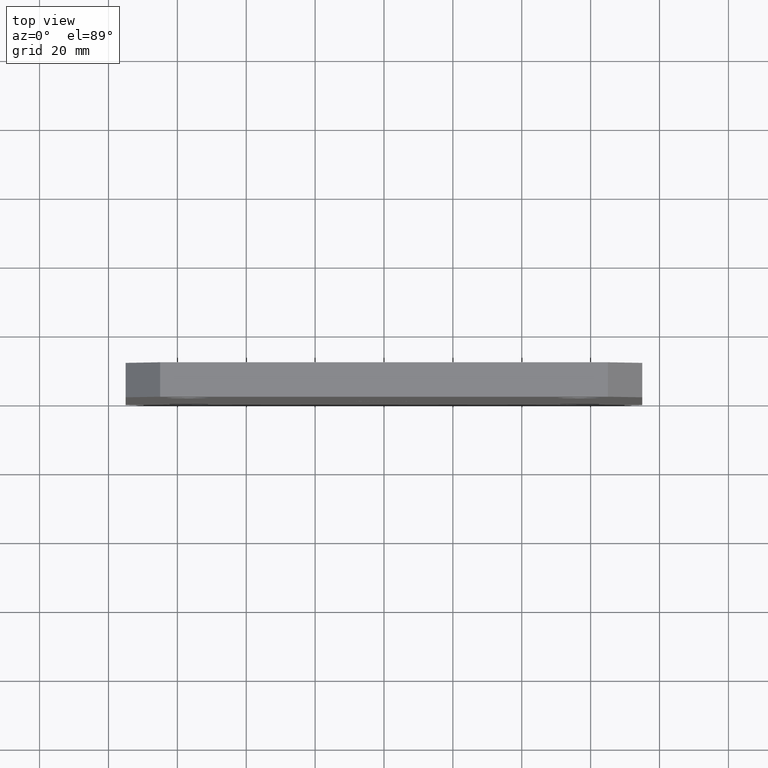
[diagram: clean part render]
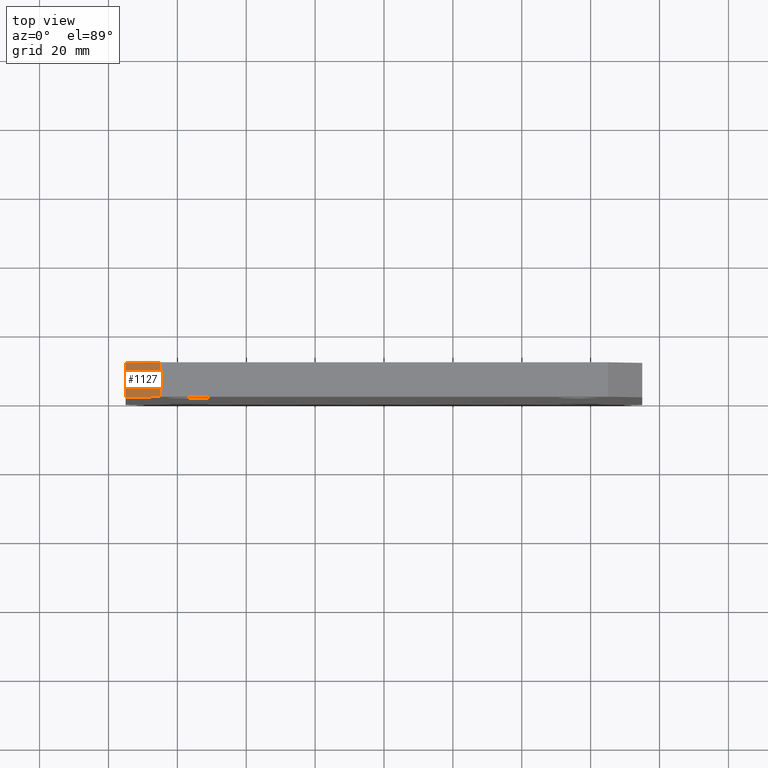
[diagram: same view with one face highlighted and labeled with its STEP entity id]
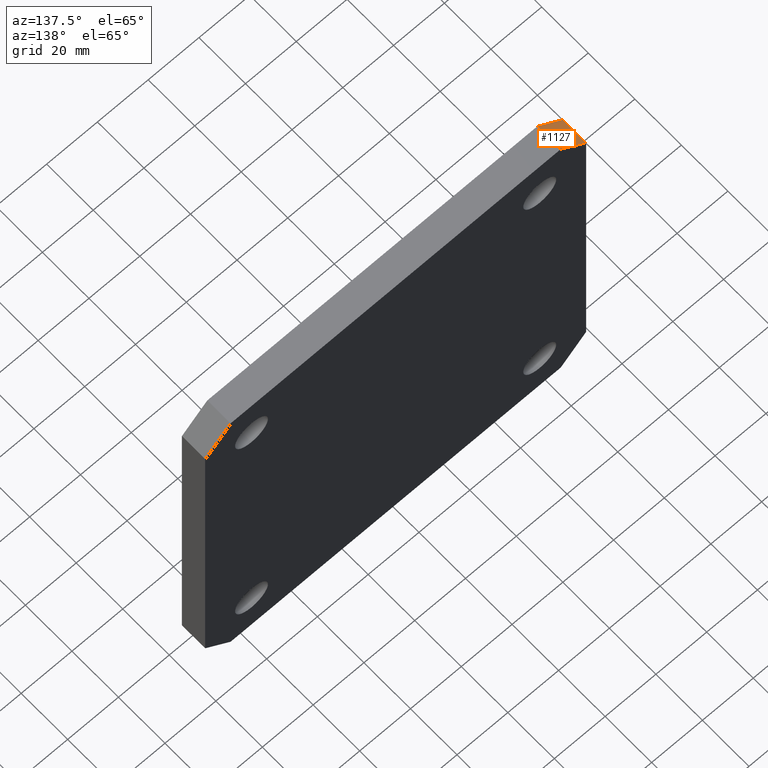
[diagram: same view with one face highlighted and labeled with its STEP entity id]
A machine part, top view. The second image highlights one B-rep face of the part: STEP entity #1127.
A second angle (auxiliary view) of the same face is appended — the face is thin or edge-on in the first view.
In plain terms, the highlighted planar face has unit normal (0.7071, 0, -0.7071).
Its self-contained STEP definition (entity closure, byte-faithful):
#163 = FACE_OUTER_BOUND ( 'NONE', #10870, .T. ) ;
#456 = LINE ( 'NONE', #9142, #2581 ) ;
#1127 = ADVANCED_FACE ( 'NONE', ( #163 ), #10323, .F. ) ;
#1146 = DIRECTION ( 'NONE',  ( -0.7071067811865455700, 0.0000000000000000000, -0.7071067811865493500 ) ) ;
#1592 = AXIS2_PLACEMENT_3D ( 'NONE', #5917, #3233, #5957 ) ;
#1789 = VECTOR ( 'NONE', #1146, 1000.000000000000100 ) ;
#2036 = LINE ( 'NONE', #7431, #8432 ) ;
#2292 = ORIENTED_EDGE ( 'NONE', *, *, #4439, .F. ) ;
#2581 = VECTOR ( 'NONE', #10218, 1000.000000000000000 ) ;
#2702 = EDGE_CURVE ( 'NONE', #3190, #6499, #10569, .T. ) ;
#2737 = CARTESIAN_POINT ( 'NONE',  ( -65.00000000000004300, 0.0000000000000000000, 75.00000000000001400 ) ) ;
#3081 = DIRECTION ( 'NONE',  ( 0.0000000000000000000, 1.000000000000000000, 0.0000000000000000000 ) ) ;
#3190 = VERTEX_POINT ( 'NONE', #8775 ) ;
#3233 = DIRECTION ( 'NONE',  ( 0.7071067811865494600, 0.0000000000000000000, -0.7071067811865456900 ) ) ;
#3404 = CARTESIAN_POINT ( 'NONE',  ( -74.99999999999998600, 10.00000000000000000, 65.00000000000000000 ) ) ;
#3510 = ORIENTED_EDGE ( 'NONE', *, *, #5999, .F. ) ;
#4439 = EDGE_CURVE ( 'NONE', #10084, #3190, #6528, .T. ) ;
#4910 = ORIENTED_EDGE ( 'NONE', *, *, #7758, .F. ) ;
#5769 = ORIENTED_EDGE ( 'NONE', *, *, #2702, .F. ) ;
#5917 = CARTESIAN_POINT ( 'NONE',  ( -65.00000000000004300, 10.00000000000000000, 75.00000000000001400 ) ) ;
#5957 = DIRECTION ( 'NONE',  ( 0.0000000000000000000, -1.000000000000000000, 0.0000000000000000000 ) ) ;
#5999 = EDGE_CURVE ( 'NONE', #9305, #10084, #456, .T. ) ;
#6499 = VERTEX_POINT ( 'NONE', #3404 ) ;
#6528 = LINE ( 'NONE', #8192, #1789 ) ;
#7431 = CARTESIAN_POINT ( 'NONE',  ( -70.00000000000019900, 10.00000000000000000, 69.99999999999981500 ) ) ;
#7758 = EDGE_CURVE ( 'NONE', #6499, #9305, #2036, .T. ) ;
#8192 = CARTESIAN_POINT ( 'NONE',  ( -65.00000000000004300, 0.0000000000000000000, 75.00000000000001400 ) ) ;
#8199 = VECTOR ( 'NONE', #3081, 1000.000000000000000 ) ;
#8325 = CARTESIAN_POINT ( 'NONE',  ( -75.00000000000000000, 10.00000000000000000, 65.00000000000000000 ) ) ;
#8432 = VECTOR ( 'NONE', #10878, 1000.000000000000100 ) ;
#8775 = CARTESIAN_POINT ( 'NONE',  ( -75.00000000000000000, 0.0000000000000000000, 65.00000000000000000 ) ) ;
#9142 = CARTESIAN_POINT ( 'NONE',  ( -65.00000000000004300, 10.00000000000000000, 75.00000000000001400 ) ) ;
#9305 = VERTEX_POINT ( 'NONE', #11102 ) ;
#10084 = VERTEX_POINT ( 'NONE', #2737 ) ;
#10218 = DIRECTION ( 'NONE',  ( 0.0000000000000000000, -1.000000000000000000, 0.0000000000000000000 ) ) ;
#10323 = PLANE ( 'NONE',  #1592 ) ;
#10569 = LINE ( 'NONE', #8325, #8199 ) ;
#10870 = EDGE_LOOP ( 'NONE', ( #4910, #5769, #2292, #3510 ) ) ;
#10878 = DIRECTION ( 'NONE',  ( 0.7071067811865455700, -0.0000000000000000000, 0.7071067811865493500 ) ) ;
#11102 = CARTESIAN_POINT ( 'NONE',  ( -65.00000000000002800, 10.00000000000000000, 75.00000000000001400 ) ) ;